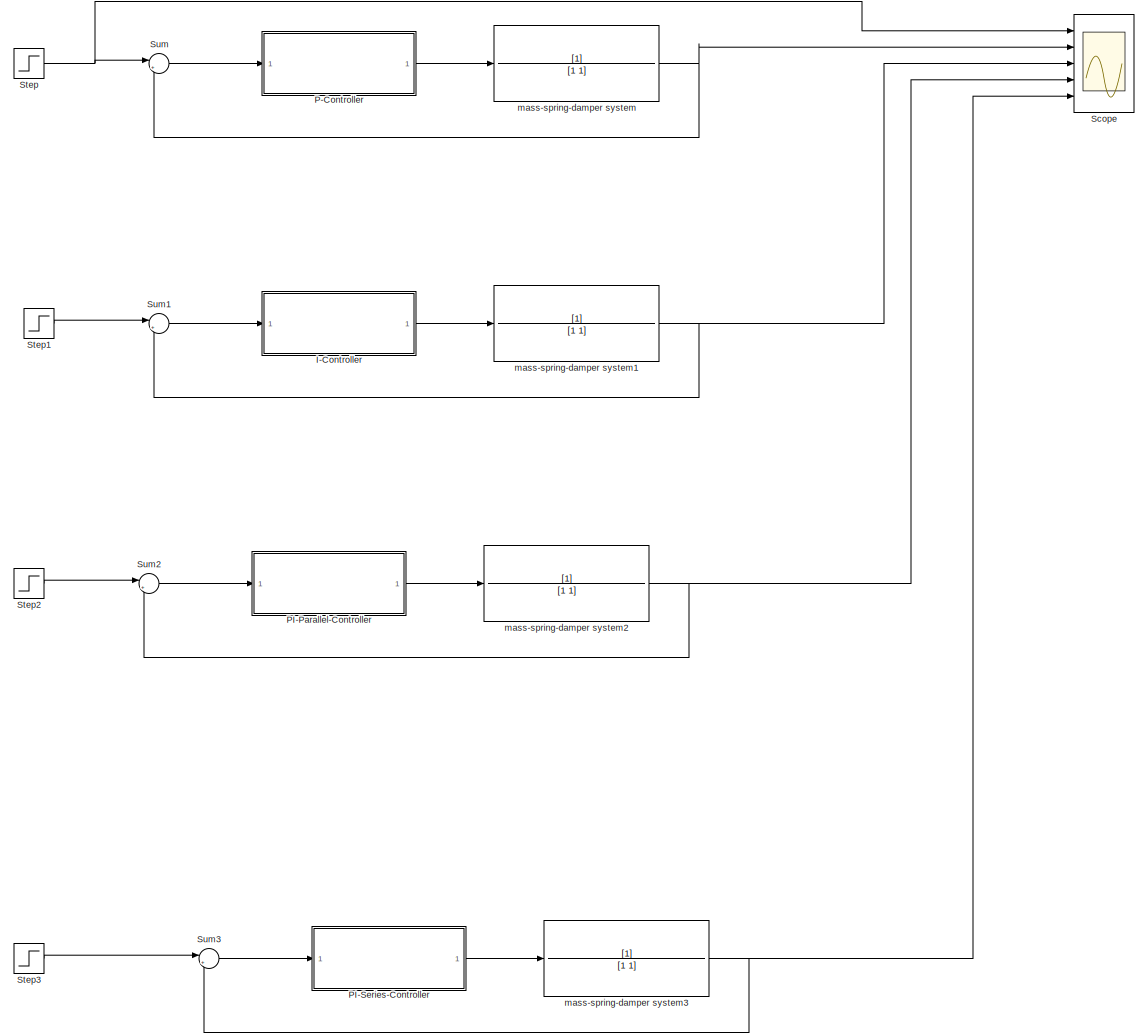
[diagram: root canvas - part 1/1, most of the canvas]
MODEL slx_121e2f8dca60
KIND model
CONFIG AbsTol = auto
CONFIG EnableMultiTasking = off
CONFIG FixedStep = auto
CONFIG MaxStep = 1e-3
CONFIG MinStep = auto
CONFIG RelTol = 1e-3
CONFIG SampleTimeConstraint = Unconstrained
CONFIG SolverName = VariableStepAuto
CONFIG StartTime = 0.0
CONFIG StopTime = 20
BLOCK [TransferFcn]  mass-spring-damper system
BLOCK [TransferFcn]  mass-spring-damper system1
BLOCK [TransferFcn]  mass-spring-damper system2
BLOCK [TransferFcn]  mass-spring-damper system3
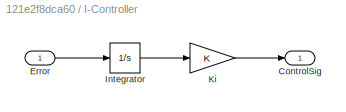
BLOCK [SubSystem] I-Controller
  Ports = [1, 1]
  RequestExecContextInheritance = off
BLOCK [Outport] I-Controller/ControlSig
BLOCK [Inport] I-Controller/Error
BLOCK [Integrator] I-Controller/Integrator
  Ports = [1, 1]
BLOCK [Gain] I-Controller/Ki
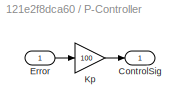
BLOCK [SubSystem] P-Controller
  Ports = [1, 1]
  RequestExecContextInheritance = off
BLOCK [Outport] P-Controller/ControlSig
BLOCK [Inport] P-Controller/Error
BLOCK [Gain] P-Controller/Kp
  Gain = 100
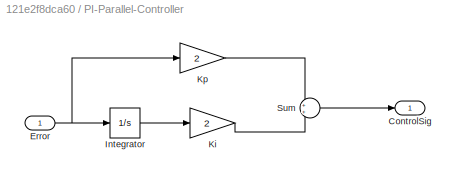
BLOCK [SubSystem] PI-Parallel-Controller
  Ports = [1, 1]
  RequestExecContextInheritance = off
BLOCK [Outport] PI-Parallel-Controller/ControlSig
BLOCK [Inport] PI-Parallel-Controller/Error
BLOCK [Integrator] PI-Parallel-Controller/Integrator
  Ports = [1, 1]
BLOCK [Gain] PI-Parallel-Controller/Ki
  Gain = 2
BLOCK [Gain] PI-Parallel-Controller/Kp
  Gain = 2
BLOCK [Sum] PI-Parallel-Controller/Sum
  Ports = [2, 1]
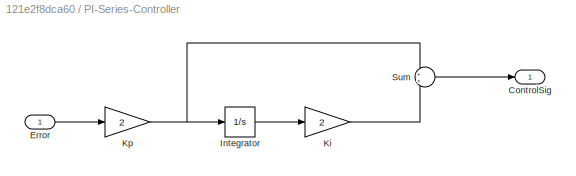
BLOCK [SubSystem] PI-Series-Controller
  Ports = [1, 1]
  RequestExecContextInheritance = off
BLOCK [Outport] PI-Series-Controller/ControlSig
BLOCK [Inport] PI-Series-Controller/Error
BLOCK [Integrator] PI-Series-Controller/Integrator
  Ports = [1, 1]
BLOCK [Gain] PI-Series-Controller/Ki
  Gain = 2
BLOCK [Gain] PI-Series-Controller/Kp
  Gain = 2
BLOCK [Sum] PI-Series-Controller/Sum
  Ports = [2, 1]
BLOCK [Scope] Scope
  Floating = off
  NumInputPorts = 5
  Ports = [5]
  ScopeSpecificationString = Simulink.scopes.TimeScopeBlockCfg('CurrentConfiguration', extmgr.ConfigurationSet(extmgr.Configuration('Core','General UI',true),extmgr.Configuration('Core','Source UI',true),extmgr.Configuration('Sources','WiredSimulink',true),extmgr.Configuration('Visuals','Time Domain',true,'SerializedDisplays',{struct('MinYLimReal','-0.21416','MaxYLimReal','1.92743','YLabelReal','','MinYLimMag','0.00000','MaxY...<+1518ch>
BLOCK [Step] Step
  SampleTime = 0
BLOCK [Step] Step1
  SampleTime = 0
BLOCK [Step] Step2
  SampleTime = 0
BLOCK [Step] Step3
  SampleTime = 0
BLOCK [Sum] Sum
  Inputs = |+-
  Ports = [2, 1]
BLOCK [Sum] Sum1
  Inputs = |+-
  Ports = [2, 1]
BLOCK [Sum] Sum2
  Inputs = |+-
  Ports = [2, 1]
BLOCK [Sum] Sum3
  Inputs = |+-
  Ports = [2, 1]
NET  mass-spring-damper system1:1 -> Scope:3, Sum1:2
NET  mass-spring-damper system2:1 -> Scope:4, Sum2:2
NET  mass-spring-damper system3:1 -> Scope:5, Sum3:2
NET  mass-spring-damper system:1 -> Scope:2, Sum:2
LINE I-Controller/Error:1 -> I-Controller/Integrator:1
LINE I-Controller/Integrator:1 -> I-Controller/Ki:1
LINE I-Controller/Ki:1 -> I-Controller/ControlSig:1
LINE I-Controller:1 ->  mass-spring-damper system1:1
LINE P-Controller/Error:1 -> P-Controller/Kp:1
LINE P-Controller/Kp:1 -> P-Controller/ControlSig:1
LINE P-Controller:1 ->  mass-spring-damper system:1
NET PI-Parallel-Controller/Error:1 -> PI-Parallel-Controller/Integrator:1, PI-Parallel-Controller/Kp:1
LINE PI-Parallel-Controller/Integrator:1 -> PI-Parallel-Controller/Ki:1
LINE PI-Parallel-Controller/Ki:1 -> PI-Parallel-Controller/Sum:2
LINE PI-Parallel-Controller/Kp:1 -> PI-Parallel-Controller/Sum:1
LINE PI-Parallel-Controller/Sum:1 -> PI-Parallel-Controller/ControlSig:1
LINE PI-Parallel-Controller:1 ->  mass-spring-damper system2:1
LINE PI-Series-Controller/Error:1 -> PI-Series-Controller/Kp:1
LINE PI-Series-Controller/Integrator:1 -> PI-Series-Controller/Ki:1
LINE PI-Series-Controller/Ki:1 -> PI-Series-Controller/Sum:2
NET PI-Series-Controller/Kp:1 -> PI-Series-Controller/Integrator:1, PI-Series-Controller/Sum:1
LINE PI-Series-Controller/Sum:1 -> PI-Series-Controller/ControlSig:1
LINE PI-Series-Controller:1 ->  mass-spring-damper system3:1
LINE Step1:1 -> Sum1:1
LINE Step2:1 -> Sum2:1
LINE Step3:1 -> Sum3:1
NET Step:1 -> Scope:1, Sum:1
LINE Sum1:1 -> I-Controller:1
LINE Sum2:1 -> PI-Parallel-Controller:1
LINE Sum3:1 -> PI-Series-Controller:1
LINE Sum:1 -> P-Controller:1
note: NET lines group one-source signal fan-out (src -> all destinations, sorted); 1:1 wires keep LINE
